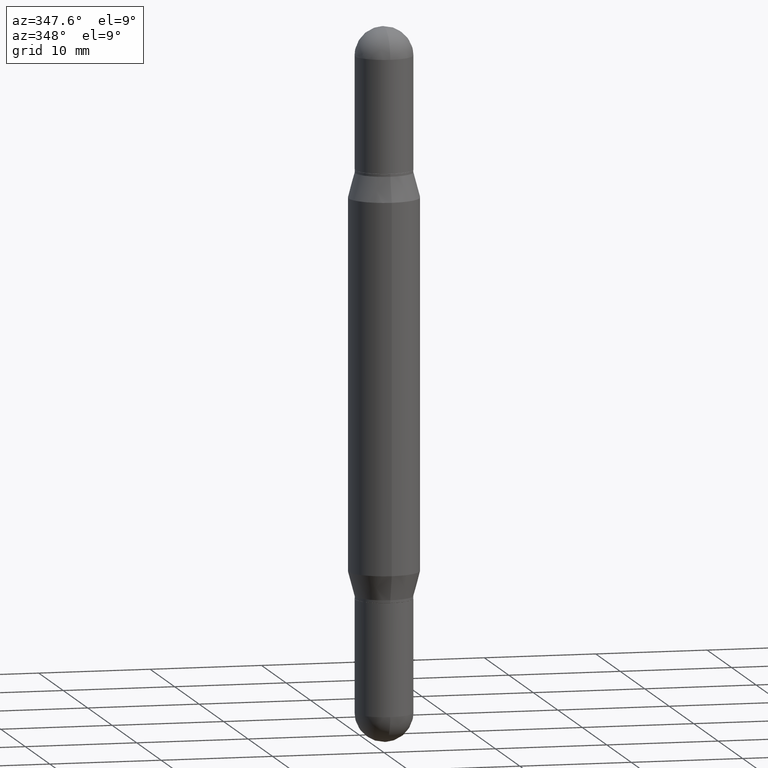
[diagram: clean part render]
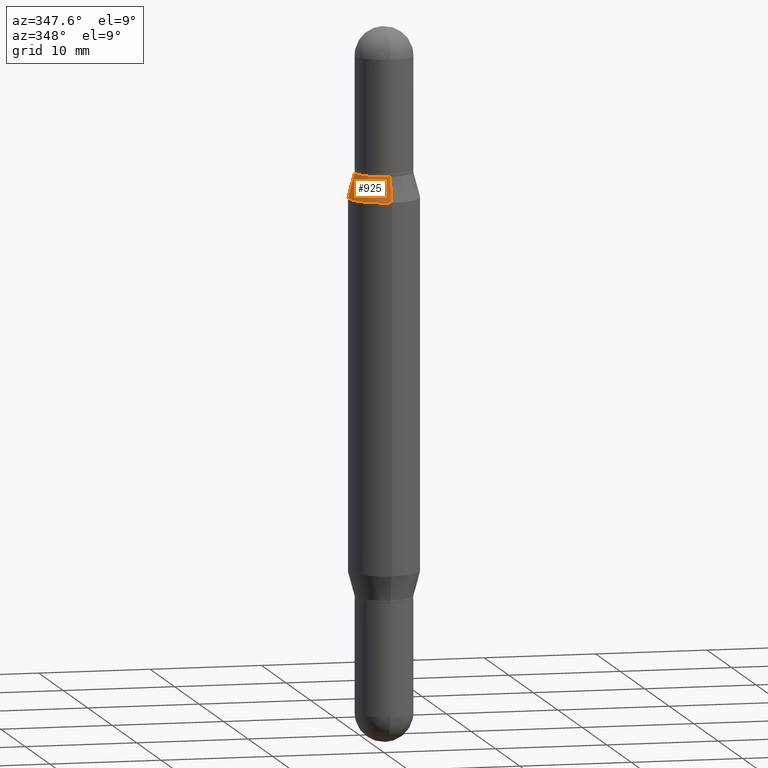
[diagram: same view with one face highlighted and labeled with its STEP entity id]
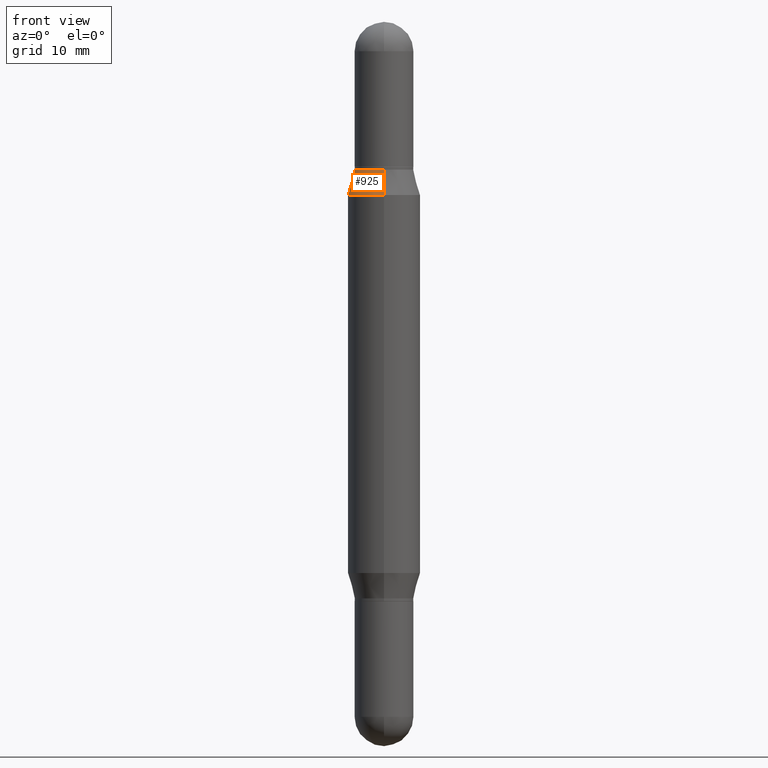
[diagram: same view with one face highlighted and labeled with its STEP entity id]
A machine part, auxiliary view. The second image highlights one B-rep face of the part: STEP entity #925.
A second angle (front view) of the same face is appended — the face is thin or edge-on in the first view.
In plain terms, the highlighted conical surface has half-angle 15 deg.
Its self-contained STEP definition (entity closure, byte-faithful):
#1 = DIRECTION ( 'NONE',  ( -6.982962677686266711E-15, -1.000000000000000000, 3.362688323072702491E-15 ) ) ;
#12 = ORIENTED_EDGE ( 'NONE', *, *, #639, .F. ) ;
#23 = VECTOR ( 'NONE', #721, 39.37007874015748143 ) ;
#56 = AXIS2_PLACEMENT_3D ( 'NONE', #505, #947, #592 ) ;
#69 = EDGE_CURVE ( 'NONE', #396, #1074, #265, .T. ) ;
#93 = AXIS2_PLACEMENT_3D ( 'NONE', #204, #190, #533 ) ;
#96 = CARTESIAN_POINT ( 'NONE',  ( 6.966835716737476402E-16, 0.1015499999999981973, -0.5100000000000003419 ) ) ;
#150 = LINE ( 'NONE', #828, #630 ) ;
#190 = DIRECTION ( 'NONE',  ( 2.445788020965419490E-29, 3.480071600711770532E-15, 1.000000000000000000 ) ) ;
#204 = CARTESIAN_POINT ( 'NONE',  ( 4.867118161721185703E-29, -1.788527271859794009E-15, -0.5100000000000000089 ) ) ;
#261 = DIRECTION ( 'NONE',  ( -2.445788020965419490E-29, -3.480071600711770532E-15, -1.000000000000000000 ) ) ;
#265 = CIRCLE ( 'NONE', #56, 0.1250000000000000000 ) ;
#317 = EDGE_CURVE ( 'NONE', #319, #396, #603, .T. ) ;
#319 = VERTEX_POINT ( 'NONE', #96 ) ;
#360 = CONICAL_SURFACE ( 'NONE', #880, 0.1015499999999999875, 0.2617993877991502960 ) ;
#396 = VERTEX_POINT ( 'NONE', #758 ) ;
#431 = EDGE_CURVE ( 'NONE', #480, #1074, #150, .T. ) ;
#449 = CARTESIAN_POINT ( 'NONE',  ( 6.966835716737475416E-16, 0.1015499999999981973, -0.5100000000000003419 ) ) ;
#480 = VERTEX_POINT ( 'NONE', #651 ) ;
#492 = CIRCLE ( 'NONE', #93, 0.1015499999999999875 ) ;
#505 = CARTESIAN_POINT ( 'NONE',  ( 4.653071130747647170E-29, -2.093091276312497727E-15, -0.5975165914374899190 ) ) ;
#512 = FACE_OUTER_BOUND ( 'NONE', #664, .T. ) ;
#533 = DIRECTION ( 'NONE',  ( -6.982962677686266711E-15, -1.000000000000000000, 3.362688323072702491E-15 ) ) ;
#591 = CARTESIAN_POINT ( 'NONE',  ( 4.867118161721185703E-29, -1.788527271859794009E-15, -0.5100000000000000089 ) ) ;
#592 = DIRECTION ( 'NONE',  ( -6.982962677686265922E-15, -1.000000000000000000, 3.278217592397115862E-15 ) ) ;
#603 = LINE ( 'NONE', #449, #23 ) ;
#630 = VECTOR ( 'NONE', #833, 39.37007874015748143 ) ;
#639 = EDGE_CURVE ( 'NONE', #319, #480, #492, .T. ) ;
#651 = CARTESIAN_POINT ( 'NONE',  ( -7.091198599189916755E-16, -0.1015500000000017777, -0.5099999999999996758 ) ) ;
#664 = EDGE_LOOP ( 'NONE', ( #12, #827, #825, #973 ) ) ;
#720 = CARTESIAN_POINT ( 'NONE',  ( -8.728703347107367960E-16, -0.1250000000000021094, -0.5975165914374894749 ) ) ;
#721 = DIRECTION ( 'NONE',  ( 1.775627540710965497E-15, 0.2588190451025182415, -0.9659258262890689783 ) ) ;
#758 = CARTESIAN_POINT ( 'NONE',  ( 8.575622497214877909E-16, 0.1249999999999979045, -0.5975165914374903631 ) ) ;
#825 = ORIENTED_EDGE ( 'NONE', *, *, #69, .T. ) ;
#827 = ORIENTED_EDGE ( 'NONE', *, *, #317, .T. ) ;
#828 = CARTESIAN_POINT ( 'NONE',  ( -7.091198599189916755E-16, -0.1015500000000017777, -0.5099999999999996758 ) ) ;
#833 = DIRECTION ( 'NONE',  ( -1.807323732225330534E-15, -0.2588190451025250138, -0.9659258262890670910 ) ) ;
#880 = AXIS2_PLACEMENT_3D ( 'NONE', #591, #261, #1 ) ;
#925 = ADVANCED_FACE ( 'NONE', ( #512 ), #360, .T. ) ;
#947 = DIRECTION ( 'NONE',  ( 2.445788020965419490E-29, 3.480071600711770532E-15, 1.000000000000000000 ) ) ;
#973 = ORIENTED_EDGE ( 'NONE', *, *, #431, .F. ) ;
#1074 = VERTEX_POINT ( 'NONE', #720 ) ;